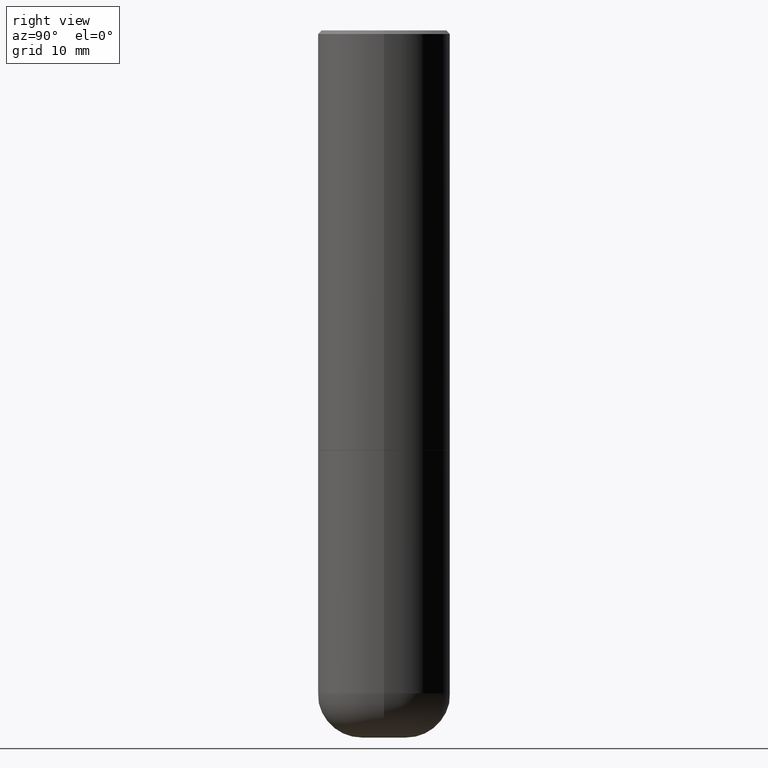
[diagram: clean part render]
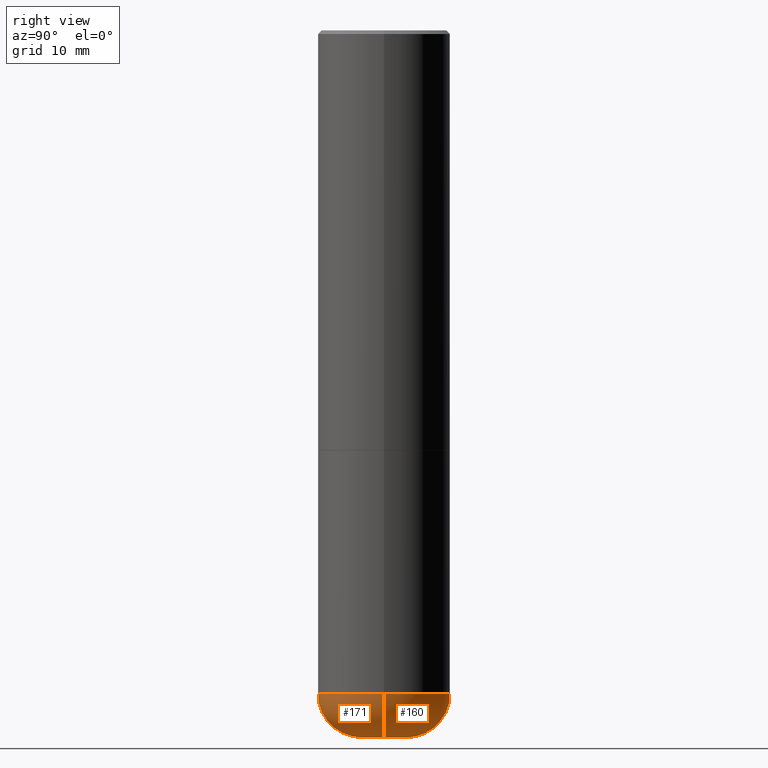
[diagram: same view with one multi-face feature highlighted, each face labeled with its STEP entity id]
A machine part, right view. The highlighted faces form ONE feature: a constant-radius fillet chain: 2 tangent blend faces with common blend radius 6.35 mm. The faces share edges in the B-rep.
Their STEP definitions:
[1] entity #160 (Torus):
#20 = DIRECTION ( 'NONE',  ( -6.982962677686266711E-15, -1.000000000000000000, 3.491481338843145583E-15 ) ) ;
#22 = ORIENTED_EDGE ( 'NONE', *, *, #169, .T. ) ;
#51 = DIRECTION ( 'NONE',  ( -2.445468806185136597E-29, 3.491481338843145583E-15, 1.000000000000000000 ) ) ;
#55 = DIRECTION ( 'NONE',  ( 7.105427357601001859E-15, 1.000000000000000000, -3.491481338843145583E-15 ) ) ;
#63 = CARTESIAN_POINT ( 'NONE',  ( 0.1228183661254082099, -1.482356142216071167E-14, -3.999999999999999556 ) ) ;
#64 = TOROIDAL_SURFACE ( 'NONE', #384, 0.1250000000000003053, 0.2500000000000001110 ) ;
#76 = CARTESIAN_POINT ( 'NONE',  ( 9.170531302183962062E-29, -1.309308825688951538E-14, -3.750009519233956645 ) ) ;
#84 = VERTEX_POINT ( 'NONE', #63 ) ;
#95 = CARTESIAN_POINT ( 'NONE',  ( -0.1228183661254082099, -1.176090068723919405E-14, -3.999999999999999556 ) ) ;
#112 = DIRECTION ( 'NONE',  ( -2.445468806185136597E-29, 3.491481338843145583E-15, 1.000000000000000000 ) ) ;
#115 = CIRCLE ( 'NONE', #456, 0.2500000000000000555 ) ;
#119 = DIRECTION ( 'NONE',  ( 1.000000000000000000, -6.982962677686260400E-15, 0.000000000000000000 ) ) ;
#122 = CIRCLE ( 'NONE', #283, 0.1228183661254082099 ) ;
#134 = VERTEX_POINT ( 'NONE', #95 ) ;
#147 = CARTESIAN_POINT ( 'NONE',  ( 0.3749999999999999445, -1.571169926102186224E-14, -3.750009519233956645 ) ) ;
#159 = DIRECTION ( 'NONE',  ( -1.000000000000000000, 7.105427357601001859E-15, 0.000000000000000000 ) ) ;
#160 = ADVANCED_FACE ( 'NONE', ( #464 ), #64, .T. ) ;
#167 = EDGE_LOOP ( 'NONE', ( #267, #22, #276, #432 ) ) ;
#169 = EDGE_CURVE ( 'NONE', #134, #206, #115, .T. ) ;
#189 = EDGE_CURVE ( 'NONE', #84, #134, #122, .T. ) ;
#191 = CARTESIAN_POINT ( 'NONE',  ( -0.3749999999999999445, -8.028142959220617840E-15, -3.750009519233956645 ) ) ;
#201 = EDGE_CURVE ( 'NONE', #239, #206, #399, .T. ) ;
#205 = CARTESIAN_POINT ( 'NONE',  ( 9.781875224740545266E-29, -1.396592535537258075E-14, -3.999999999999999556 ) ) ;
#206 = VERTEX_POINT ( 'NONE', #191 ) ;
#228 = CIRCLE ( 'NONE', #375, 0.2500000000000000555 ) ;
#236 = AXIS2_PLACEMENT_3D ( 'NONE', #76, #112, #259 ) ;
#239 = VERTEX_POINT ( 'NONE', #147 ) ;
#259 = DIRECTION ( 'NONE',  ( 1.000000000000000000, -6.982962677686263555E-15, 0.000000000000000000 ) ) ;
#266 = CARTESIAN_POINT ( 'NONE',  ( 9.170531302183962062E-29, -1.309308825688951538E-14, -3.750009519233956645 ) ) ;
#267 = ORIENTED_EDGE ( 'NONE', *, *, #189, .T. ) ;
#276 = ORIENTED_EDGE ( 'NONE', *, *, #201, .F. ) ;
#283 = AXIS2_PLACEMENT_3D ( 'NONE', #205, #319, #119 ) ;
#306 = CARTESIAN_POINT ( 'NONE',  ( 0.1250000000000003053, -1.396595859160030030E-14, -3.750009519233956645 ) ) ;
#319 = DIRECTION ( 'NONE',  ( -2.445468806185136597E-29, 3.491481338843145583E-15, 1.000000000000000000 ) ) ;
#355 = EDGE_CURVE ( 'NONE', #84, #239, #228, .T. ) ;
#358 = DIRECTION ( 'NONE',  ( 1.000000000000000000, -6.982962677686269077E-15, 0.000000000000000000 ) ) ;
#375 = AXIS2_PLACEMENT_3D ( 'NONE', #306, #20, #358 ) ;
#384 = AXIS2_PLACEMENT_3D ( 'NONE', #266, #51, #434 ) ;
#399 = CIRCLE ( 'NONE', #236, 0.3749999999999999445 ) ;
#410 = CARTESIAN_POINT ( 'NONE',  ( -0.1250000000000003053, -1.220490983718938699E-14, -3.750009519233956645 ) ) ;
#432 = ORIENTED_EDGE ( 'NONE', *, *, #355, .F. ) ;
#434 = DIRECTION ( 'NONE',  ( 1.000000000000000000, -6.982962677686266711E-15, 4.883557194083113462E-29 ) ) ;
#456 = AXIS2_PLACEMENT_3D ( 'NONE', #410, #55, #159 ) ;
#464 = FACE_OUTER_BOUND ( 'NONE', #167, .T. ) ;
[2] entity #171 (Torus):
#3 = ORIENTED_EDGE ( 'NONE', *, *, #355, .T. ) ;
#8 = FACE_OUTER_BOUND ( 'NONE', #154, .T. ) ;
#16 = DIRECTION ( 'NONE',  ( -2.445468806185136597E-29, 3.491481338843145583E-15, 1.000000000000000000 ) ) ;
#20 = DIRECTION ( 'NONE',  ( -6.982962677686266711E-15, -1.000000000000000000, 3.491481338843145583E-15 ) ) ;
#32 = CARTESIAN_POINT ( 'NONE',  ( 9.781875224740545266E-29, -1.396592535537258075E-14, -3.999999999999999556 ) ) ;
#55 = DIRECTION ( 'NONE',  ( 7.105427357601001859E-15, 1.000000000000000000, -3.491481338843145583E-15 ) ) ;
#63 = CARTESIAN_POINT ( 'NONE',  ( 0.1228183661254082099, -1.482356142216071167E-14, -3.999999999999999556 ) ) ;
#83 = EDGE_CURVE ( 'NONE', #134, #84, #149, .T. ) ;
#84 = VERTEX_POINT ( 'NONE', #63 ) ;
#95 = CARTESIAN_POINT ( 'NONE',  ( -0.1228183661254082099, -1.176090068723919405E-14, -3.999999999999999556 ) ) ;
#115 = CIRCLE ( 'NONE', #456, 0.2500000000000000555 ) ;
#120 = AXIS2_PLACEMENT_3D ( 'NONE', #245, #207, #277 ) ;
#134 = VERTEX_POINT ( 'NONE', #95 ) ;
#138 = TOROIDAL_SURFACE ( 'NONE', #481, 0.1250000000000003053, 0.2500000000000001110 ) ;
#147 = CARTESIAN_POINT ( 'NONE',  ( 0.3749999999999999445, -1.571169926102186224E-14, -3.750009519233956645 ) ) ;
#149 = CIRCLE ( 'NONE', #222, 0.1228183661254082099 ) ;
#154 = EDGE_LOOP ( 'NONE', ( #351, #328, #3, #240 ) ) ;
#159 = DIRECTION ( 'NONE',  ( -1.000000000000000000, 7.105427357601001859E-15, 0.000000000000000000 ) ) ;
#169 = EDGE_CURVE ( 'NONE', #134, #206, #115, .T. ) ;
#171 = ADVANCED_FACE ( 'NONE', ( #8 ), #138, .T. ) ;
#191 = CARTESIAN_POINT ( 'NONE',  ( -0.3749999999999999445, -8.028142959220617840E-15, -3.750009519233956645 ) ) ;
#206 = VERTEX_POINT ( 'NONE', #191 ) ;
#207 = DIRECTION ( 'NONE',  ( -2.445468806185136597E-29, 3.491481338843145583E-15, 1.000000000000000000 ) ) ;
#222 = AXIS2_PLACEMENT_3D ( 'NONE', #32, #334, #285 ) ;
#228 = CIRCLE ( 'NONE', #375, 0.2500000000000000555 ) ;
#239 = VERTEX_POINT ( 'NONE', #147 ) ;
#240 = ORIENTED_EDGE ( 'NONE', *, *, #439, .F. ) ;
#245 = CARTESIAN_POINT ( 'NONE',  ( 9.170531302183962062E-29, -1.309308825688951538E-14, -3.750009519233956645 ) ) ;
#277 = DIRECTION ( 'NONE',  ( 1.000000000000000000, -6.982962677686263555E-15, 0.000000000000000000 ) ) ;
#285 = DIRECTION ( 'NONE',  ( 1.000000000000000000, -6.982962677686260400E-15, 0.000000000000000000 ) ) ;
#290 = CIRCLE ( 'NONE', #120, 0.3749999999999999445 ) ;
#306 = CARTESIAN_POINT ( 'NONE',  ( 0.1250000000000003053, -1.396595859160030030E-14, -3.750009519233956645 ) ) ;
#308 = CARTESIAN_POINT ( 'NONE',  ( 9.170531302183962062E-29, -1.309308825688951538E-14, -3.750009519233956645 ) ) ;
#328 = ORIENTED_EDGE ( 'NONE', *, *, #83, .T. ) ;
#334 = DIRECTION ( 'NONE',  ( -2.445468806185136597E-29, 3.491481338843145583E-15, 1.000000000000000000 ) ) ;
#351 = ORIENTED_EDGE ( 'NONE', *, *, #169, .F. ) ;
#355 = EDGE_CURVE ( 'NONE', #84, #239, #228, .T. ) ;
#358 = DIRECTION ( 'NONE',  ( 1.000000000000000000, -6.982962677686269077E-15, 0.000000000000000000 ) ) ;
#375 = AXIS2_PLACEMENT_3D ( 'NONE', #306, #20, #358 ) ;
#390 = DIRECTION ( 'NONE',  ( 1.000000000000000000, -6.982962677686266711E-15, 4.883557194083113462E-29 ) ) ;
#410 = CARTESIAN_POINT ( 'NONE',  ( -0.1250000000000003053, -1.220490983718938699E-14, -3.750009519233956645 ) ) ;
#439 = EDGE_CURVE ( 'NONE', #206, #239, #290, .T. ) ;
#456 = AXIS2_PLACEMENT_3D ( 'NONE', #410, #55, #159 ) ;
#481 = AXIS2_PLACEMENT_3D ( 'NONE', #308, #16, #390 ) ;